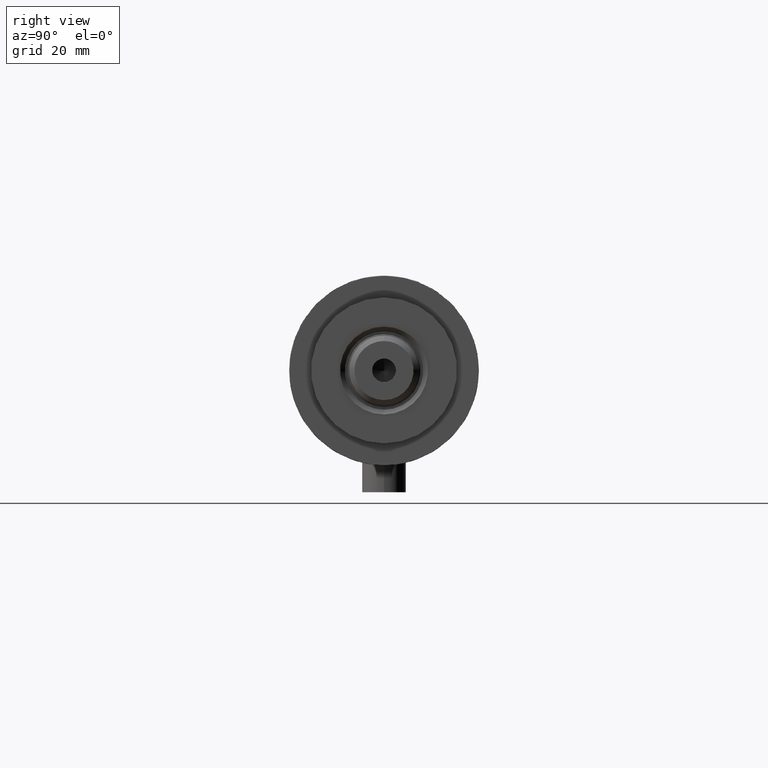
[diagram: clean part render]
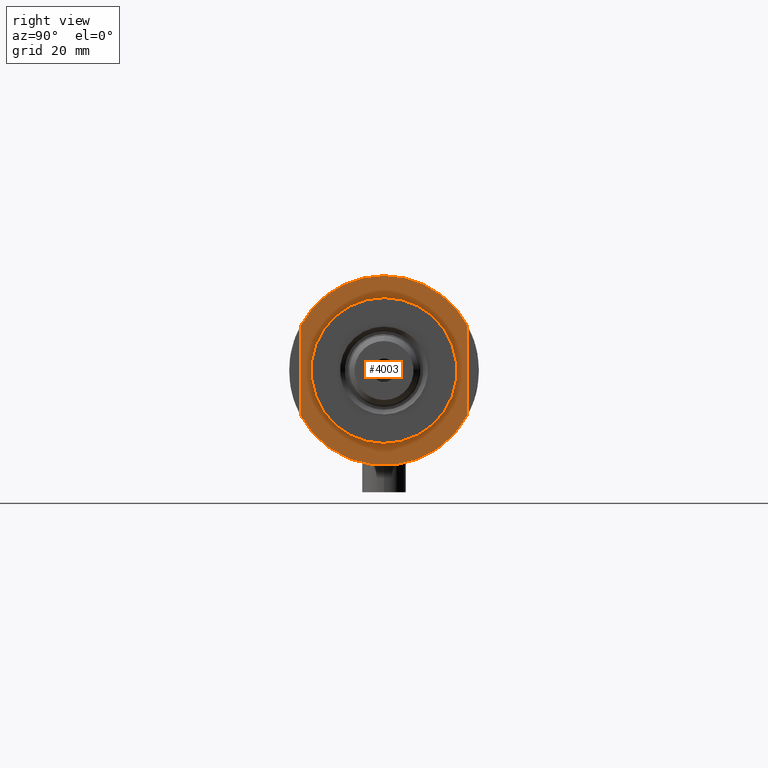
[diagram: same view with one face highlighted and labeled with its STEP entity id]
A machine part, right view. The second image highlights one B-rep face of the part: STEP entity #4003.
In plain terms, the highlighted planar face has unit normal (1, 0, -0).
Its self-contained STEP definition (entity closure, byte-faithful):
#14 = CIRCLE ( 'NONE', #2544, 26.00000000000000355 ) ;
#312 = EDGE_LOOP ( 'NONE', ( #2805, #2231, #2224, #1875, #2065 ) ) ;
#340 = CARTESIAN_POINT ( 'NONE',  ( -26.00000000000000355, 0.000000000000000000, 15.50000000000000000 ) ) ;
#371 = DIRECTION ( 'NONE',  ( -1.000000000000000000, -0.000000000000000000, -0.000000000000000000 ) ) ;
#404 = AXIS2_PLACEMENT_3D ( 'NONE', #4627, #2828, #4316 ) ;
#410 = VERTEX_POINT ( 'NONE', #1216 ) ;
#467 = VERTEX_POINT ( 'NONE', #4729 ) ;
#637 = CARTESIAN_POINT ( 'NONE',  ( -12.12435565298215145, -22.99999999999999645, 15.50000000000000000 ) ) ;
#728 = VERTEX_POINT ( 'NONE', #340 ) ;
#756 = VERTEX_POINT ( 'NONE', #2930 ) ;
#789 = EDGE_CURVE ( 'NONE', #467, #1057, #4056, .T. ) ;
#1002 = EDGE_CURVE ( 'NONE', #4190, #756, #1997, .T. ) ;
#1057 = VERTEX_POINT ( 'NONE', #3808 ) ;
#1126 = DIRECTION ( 'NONE',  ( 1.000000000000000000, 0.000000000000000000, 0.000000000000000000 ) ) ;
#1180 = VECTOR ( 'NONE', #2326, 1000.000000000000000 ) ;
#1216 = CARTESIAN_POINT ( 'NONE',  ( 12.12435565298214790, 23.00000000000000355, 15.50000000000000000 ) ) ;
#1268 = DIRECTION ( 'NONE',  ( 0.000000000000000000, 0.000000000000000000, 1.000000000000000000 ) ) ;
#1343 = AXIS2_PLACEMENT_3D ( 'NONE', #4659, #1268, #3896 ) ;
#1353 = CARTESIAN_POINT ( 'NONE',  ( 0.000000000000000000, 0.000000000000000000, 15.50000000000000000 ) ) ;
#1495 = CIRCLE ( 'NONE', #1919, 20.00000000000000000 ) ;
#1561 = DIRECTION ( 'NONE',  ( 1.000000000000000000, 0.000000000000000000, 0.000000000000000000 ) ) ;
#1739 = CIRCLE ( 'NONE', #2859, 26.00000000000000355 ) ;
#1870 = EDGE_CURVE ( 'NONE', #728, #1057, #1739, .T. ) ;
#1875 = ORIENTED_EDGE ( 'NONE', *, *, #2687, .T. ) ;
#1919 = AXIS2_PLACEMENT_3D ( 'NONE', #1353, #2820, #2465 ) ;
#1948 = CARTESIAN_POINT ( 'NONE',  ( 0.000000000000000000, 0.000000000000000000, 15.50000000000000000 ) ) ;
#1959 = CARTESIAN_POINT ( 'NONE',  ( 0.000000000000000000, 0.000000000000000000, 15.50000000000000000 ) ) ;
#1983 = DIRECTION ( 'NONE',  ( 0.000000000000000000, 0.000000000000000000, 1.000000000000000000 ) ) ;
#1997 = CIRCLE ( 'NONE', #404, 20.00000000000000000 ) ;
#2065 = ORIENTED_EDGE ( 'NONE', *, *, #1870, .T. ) ;
#2175 = CIRCLE ( 'NONE', #2802, 26.00000000000000355 ) ;
#2224 = ORIENTED_EDGE ( 'NONE', *, *, #2425, .F. ) ;
#2231 = ORIENTED_EDGE ( 'NONE', *, *, #4337, .T. ) ;
#2255 = CARTESIAN_POINT ( 'NONE',  ( -12.12435565298214613, 23.00000000000000355, 15.50000000000000000 ) ) ;
#2326 = DIRECTION ( 'NONE',  ( 1.000000000000000000, 0.000000000000000000, 0.000000000000000000 ) ) ;
#2419 = ORIENTED_EDGE ( 'NONE', *, *, #1002, .T. ) ;
#2425 = EDGE_CURVE ( 'NONE', #4204, #410, #4142, .T. ) ;
#2443 = CARTESIAN_POINT ( 'NONE',  ( 0.000000000000000000, 0.000000000000000000, 15.50000000000000000 ) ) ;
#2465 = DIRECTION ( 'NONE',  ( 1.000000000000000000, 0.000000000000000000, 0.000000000000000000 ) ) ;
#2524 = PLANE ( 'NONE',  #1343 ) ;
#2544 = AXIS2_PLACEMENT_3D ( 'NONE', #1948, #3000, #1126 ) ;
#2687 = EDGE_CURVE ( 'NONE', #4204, #728, #14, .T. ) ;
#2802 = AXIS2_PLACEMENT_3D ( 'NONE', #2443, #2845, #3594 ) ;
#2805 = ORIENTED_EDGE ( 'NONE', *, *, #789, .F. ) ;
#2820 = DIRECTION ( 'NONE',  ( -0.000000000000000000, -0.000000000000000000, -1.000000000000000000 ) ) ;
#2826 = EDGE_LOOP ( 'NONE', ( #2419, #4485 ) ) ;
#2828 = DIRECTION ( 'NONE',  ( -0.000000000000000000, -0.000000000000000000, -1.000000000000000000 ) ) ;
#2845 = DIRECTION ( 'NONE',  ( 0.000000000000000000, 0.000000000000000000, 1.000000000000000000 ) ) ;
#2859 = AXIS2_PLACEMENT_3D ( 'NONE', #1959, #1983, #1561 ) ;
#2930 = CARTESIAN_POINT ( 'NONE',  ( -20.00000000000000000, 2.449293598294706513E-15, 15.50000000000000000 ) ) ;
#3000 = DIRECTION ( 'NONE',  ( 0.000000000000000000, 0.000000000000000000, 1.000000000000000000 ) ) ;
#3286 = EDGE_CURVE ( 'NONE', #756, #4190, #1495, .T. ) ;
#3526 = FACE_OUTER_BOUND ( 'NONE', #312, .T. ) ;
#3594 = DIRECTION ( 'NONE',  ( 1.000000000000000000, 0.000000000000000000, 0.000000000000000000 ) ) ;
#3808 = CARTESIAN_POINT ( 'NONE',  ( -12.12435565298215323, -22.99999999999999645, 15.50000000000000000 ) ) ;
#3896 = DIRECTION ( 'NONE',  ( 1.000000000000000000, 0.000000000000000000, -0.000000000000000000 ) ) ;
#4003 = ADVANCED_FACE ( 'NONE', ( #4797, #3526 ), #2524, .T. ) ;
#4056 = LINE ( 'NONE', #637, #4194 ) ;
#4116 = CARTESIAN_POINT ( 'NONE',  ( -12.12435565298215145, 23.00000000000000355, 15.50000000000000000 ) ) ;
#4142 = LINE ( 'NONE', #4116, #1180 ) ;
#4143 = CARTESIAN_POINT ( 'NONE',  ( 20.00000000000000000, 0.000000000000000000, 15.50000000000000000 ) ) ;
#4190 = VERTEX_POINT ( 'NONE', #4143 ) ;
#4194 = VECTOR ( 'NONE', #371, 1000.000000000000000 ) ;
#4204 = VERTEX_POINT ( 'NONE', #2255 ) ;
#4316 = DIRECTION ( 'NONE',  ( 1.000000000000000000, 0.000000000000000000, 0.000000000000000000 ) ) ;
#4337 = EDGE_CURVE ( 'NONE', #467, #410, #2175, .T. ) ;
#4485 = ORIENTED_EDGE ( 'NONE', *, *, #3286, .T. ) ;
#4627 = CARTESIAN_POINT ( 'NONE',  ( 0.000000000000000000, 0.000000000000000000, 15.50000000000000000 ) ) ;
#4659 = CARTESIAN_POINT ( 'NONE',  ( 0.000000000000000000, 0.000000000000000000, 15.50000000000000000 ) ) ;
#4729 = CARTESIAN_POINT ( 'NONE',  ( 12.12435565298215323, -22.99999999999999645, 15.50000000000000000 ) ) ;
#4797 = FACE_BOUND ( 'NONE', #2826, .T. ) ;